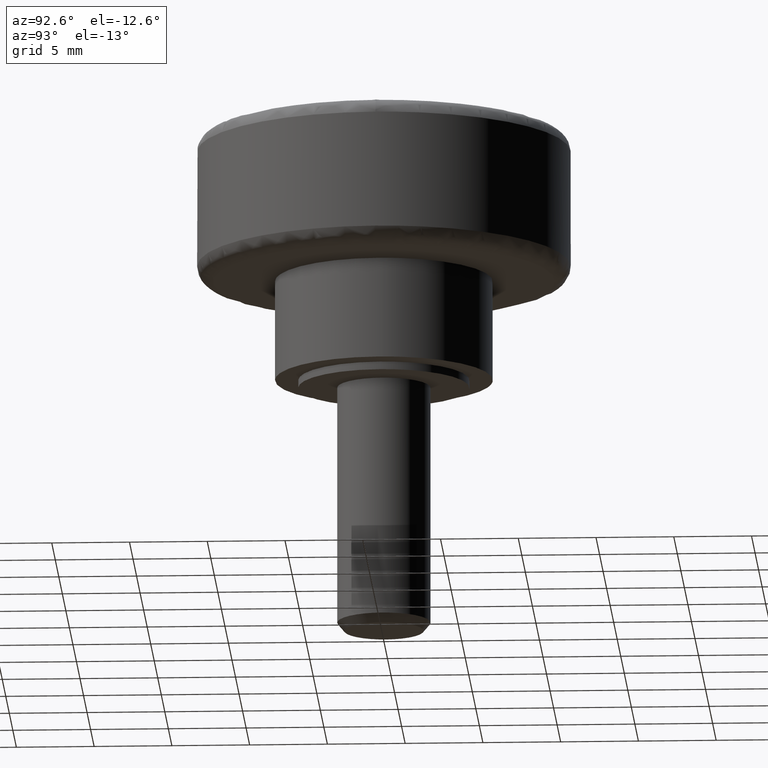
[diagram: clean part render]
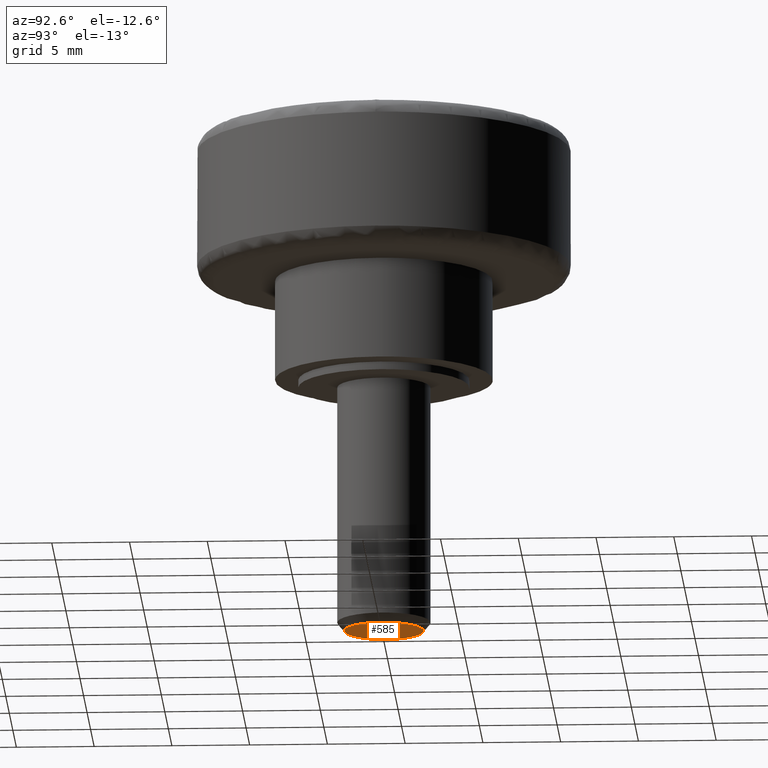
[diagram: same view with one face highlighted and labeled with its STEP entity id]
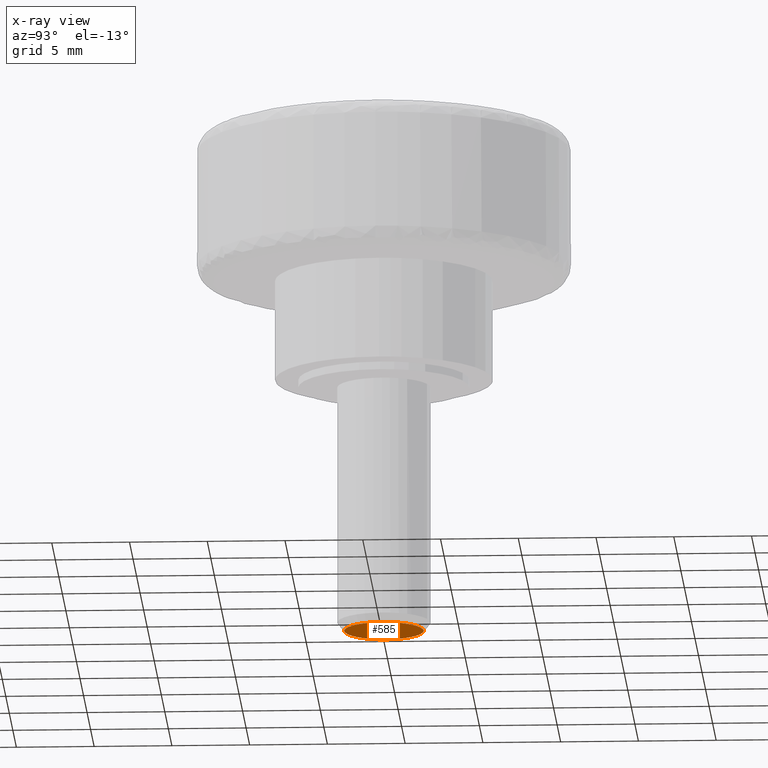
[diagram: x-ray of the same camera — body ghosted, the highlighted face saturated]
A machine part, auxiliary view. The second image highlights one B-rep face of the part: STEP entity #585.
The next image is the same camera in x-ray: the body ghosted, the highlighted face saturated — about 0% of this face is hidden behind the body in this view.
In plain terms, the highlighted face is a freeform B-spline surface patch.
Its self-contained STEP definition (entity closure, byte-faithful):
#85=CARTESIAN_POINT('',(2.149752124602390,1.371519523291040,-15.999999999999780));
#86=VERTEX_POINT('',#85);
#92=CARTESIAN_POINT('',(-2.550000000000000,0.0,-16.0));
#93=VERTEX_POINT('',#92);
#94=CARTESIAN_POINT('',(-2.550000000000000,0.0,-16.0));
#95=CARTESIAN_POINT('',(-2.549999999999999,2.549999999999999,-15.999999999999998));
#96=CARTESIAN_POINT('',(0.0,2.550000000000000,-16.0));
#97=CARTESIAN_POINT('',(1.397893822832703,2.550000000000000,-15.999999999999996));
#98=CARTESIAN_POINT('',(2.149752124602391,1.371519523291041,-15.999999999999774));
#106=(BOUNDED_CURVE()B_SPLINE_CURVE(2,(#94,#95,#96,#97,#98),.UNSPECIFIED.,.F.,.U.)B_SPLINE_CURVE_WITH_KNOTS((3,2,3),(0.0,0.250000000000000,0.407950112627127),.UNSPECIFIED.)CURVE()GEOMETRIC_REPRESENTATION_ITEM()RATIONAL_B_SPLINE_CURVE((1.0,0.707106781186548,1.0,0.814949932402774,0.863729296954662))REPRESENTATION_ITEM(''));
#107=EDGE_CURVE('',#93,#86,#106,.T.);
#109=CARTESIAN_POINT('',(0.200070694140512,-2.542139201020977,-15.999999999994960));
#110=VERTEX_POINT('',#109);
#111=CARTESIAN_POINT('',(0.200070694140512,-2.542139201020977,-15.999999999994959));
#112=CARTESIAN_POINT('',(0.100189772903893,-2.550000000000000,-16.0));
#113=CARTESIAN_POINT('',(0.0,-2.550000000000000,-16.0));
#114=CARTESIAN_POINT('',(-2.549999999999999,-2.549999999999999,-15.999999999999998));
#115=CARTESIAN_POINT('',(-2.550000000000000,0.0,-16.0));
#123=(BOUNDED_CURVE()B_SPLINE_CURVE(2,(#111,#112,#113,#114,#115),.UNSPECIFIED.,.F.,.U.)B_SPLINE_CURVE_WITH_KNOTS((3,2,3),(0.736331300628158,0.750000000000000,1.0),.UNSPECIFIED.)CURVE()GEOMETRIC_REPRESENTATION_ITEM()RATIONAL_B_SPLINE_CURVE((0.969723356162196,0.983986122575951,1.0,0.707106781186548,1.0))REPRESENTATION_ITEM(''));
#124=EDGE_CURVE('',#110,#93,#123,.T.);
#228=CARTESIAN_POINT('',(2.550000000000000,0.0,-16.0));
#229=VERTEX_POINT('',#228);
#230=CARTESIAN_POINT('',(2.550000000000000,0.0,-16.0));
#231=CARTESIAN_POINT('',(2.550000000000000,-2.357195753664866,-15.999999999999998));
#232=CARTESIAN_POINT('',(0.200070694140512,-2.542139201020977,-15.999999999994962));
#240=(BOUNDED_CURVE()B_SPLINE_CURVE(2,(#230,#231,#232),.UNSPECIFIED.,.F.,.U.)B_SPLINE_CURVE_WITH_KNOTS((3,3),(0.500000000000000,0.736331300628159),.UNSPECIFIED.)CURVE()GEOMETRIC_REPRESENTATION_ITEM()RATIONAL_B_SPLINE_CURVE((1.0,0.723120658610596,0.969723356162198))REPRESENTATION_ITEM(''));
#241=EDGE_CURVE('',#229,#110,#240,.T.);
#243=CARTESIAN_POINT('',(2.149752124602391,1.371519523291041,-15.999999999999774));
#244=CARTESIAN_POINT('',(2.550000000000000,0.744161541221140,-16.000000000000004));
#245=CARTESIAN_POINT('',(2.550000000000000,0.0,-16.0));
#253=(BOUNDED_CURVE()B_SPLINE_CURVE(2,(#243,#244,#245),.UNSPECIFIED.,.F.,.U.)B_SPLINE_CURVE_WITH_KNOTS((3,3),(0.407950112627127,0.500000000000000),.UNSPECIFIED.)CURVE()GEOMETRIC_REPRESENTATION_ITEM()RATIONAL_B_SPLINE_CURVE((0.863729296954662,0.892156848783774,1.0))REPRESENTATION_ITEM(''));
#254=EDGE_CURVE('',#86,#229,#253,.T.);
#574=CARTESIAN_POINT('',(-2.804744942240059,-2.803957017101145,-16.0));
#575=CARTESIAN_POINT('',(2.804745124630272,-2.803957017101145,-16.0));
#576=CARTESIAN_POINT('',(-2.804744942240059,2.803764914609290,-16.0));
#577=CARTESIAN_POINT('',(2.804745124630272,2.803764914609290,-16.0));
#578=B_SPLINE_SURFACE_WITH_KNOTS('',1,1,((#574,#576),(#575,#577)),.UNSPECIFIED.,.F.,.F.,.U.,(2,2),(2,2),(0.0,5.609490066870331),(0.0,5.607721931710435),.UNSPECIFIED.);
#579=ORIENTED_EDGE('',*,*,#107,.T.);
#580=ORIENTED_EDGE('',*,*,#254,.T.);
#581=ORIENTED_EDGE('',*,*,#241,.T.);
#582=ORIENTED_EDGE('',*,*,#124,.T.);
#583=EDGE_LOOP('',(#579,#580,#581,#582));
#584=FACE_OUTER_BOUND('',#583,.T.);
#585=ADVANCED_FACE('',(#584),#578,.F.);